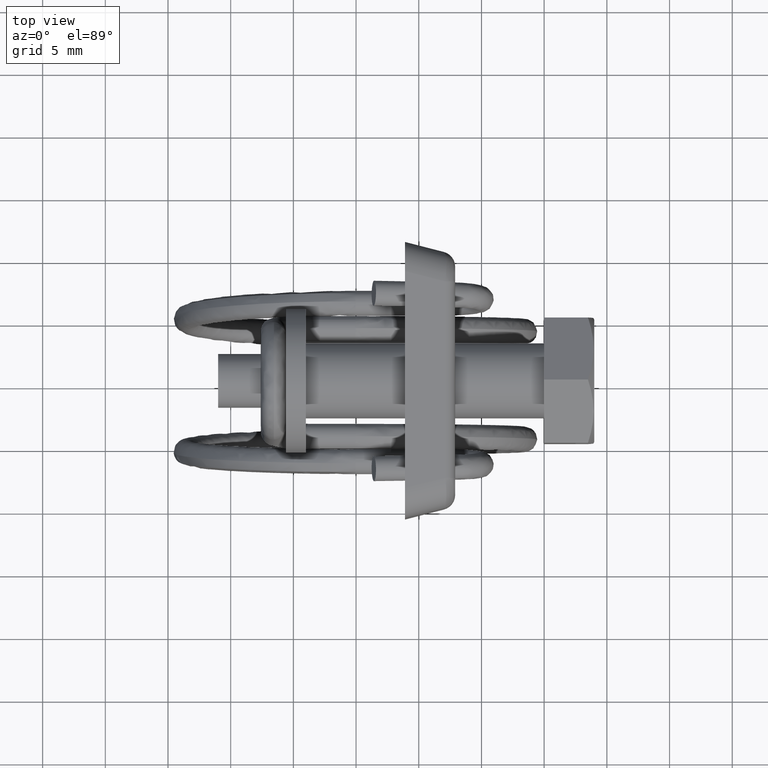
[diagram: clean part render]
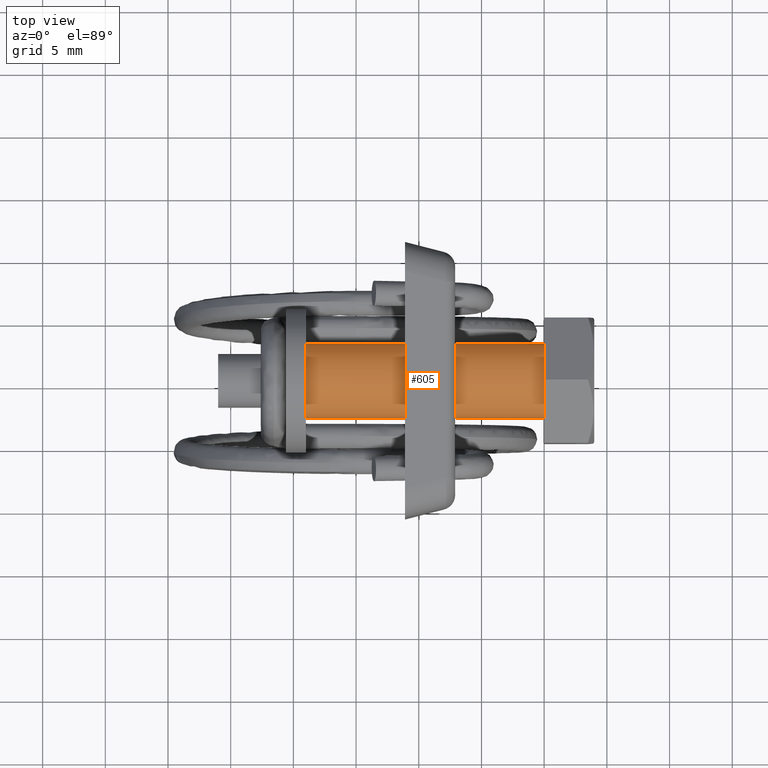
[diagram: same view with one face highlighted and labeled with its STEP entity id]
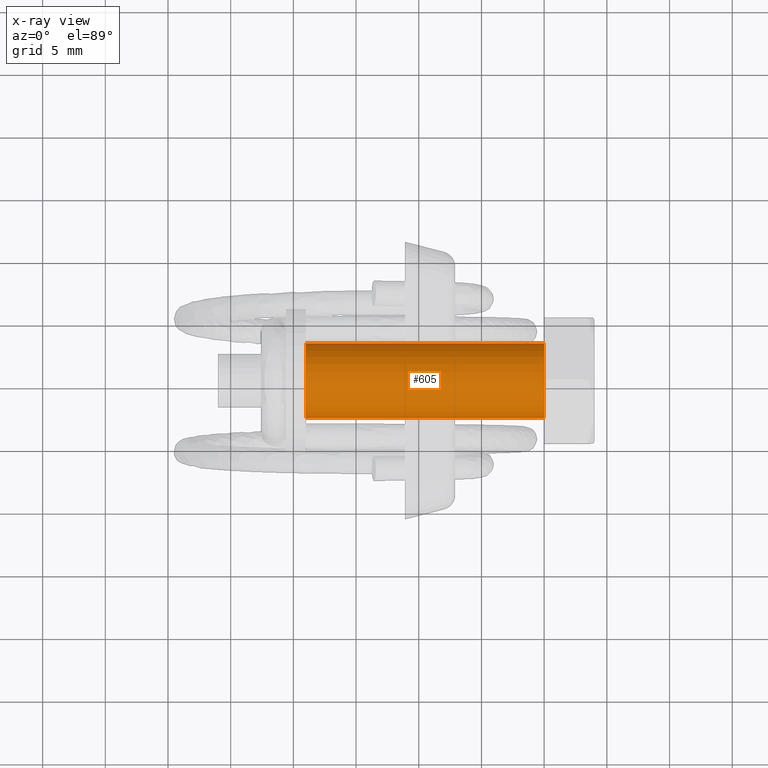
[diagram: x-ray of the same camera — body ghosted, the highlighted face saturated]
A machine part, top view. The second image highlights one B-rep face of the part: STEP entity #605.
The next image is the same camera in x-ray: the body ghosted, the highlighted face saturated — about 0% of this face is hidden behind the body in this view.
In plain terms, the highlighted face is a freeform B-spline surface patch.
Its self-contained STEP definition (entity closure, byte-faithful):
#442=CARTESIAN_POINT('',(7.666456E-016,2.979028579084106,0.354102704029243));
#443=VERTEX_POINT('',#442);
#461=CARTESIAN_POINT('',(7.216450E-016,-2.994404395261453,-0.183145618674264));
#462=VERTEX_POINT('',#461);
#476=CARTESIAN_POINT('',(-19.0,-2.994404395261453,-0.183145618674264));
#477=VERTEX_POINT('',#476);
#478=CARTESIAN_POINT('',(7.216450E-016,-2.994404395261453,-0.183145618674264));
#479=CARTESIAN_POINT('',(-19.0,-2.994404395261453,-0.183145618674264));
#480=QUASI_UNIFORM_CURVE('',1,(#478,#479),.UNSPECIFIED.,.F.,.U.);
#481=EDGE_CURVE('',#462,#477,#480,.T.);
#498=CARTESIAN_POINT('',(-19.0,2.979028579084106,0.354102704029243));
#499=VERTEX_POINT('',#498);
#515=CARTESIAN_POINT('',(7.666456E-016,2.979028579084106,0.354102704029243));
#516=CARTESIAN_POINT('',(-19.0,2.979028579084106,0.354102704029243));
#517=QUASI_UNIFORM_CURVE('',1,(#515,#516),.UNSPECIFIED.,.F.,.U.);
#518=EDGE_CURVE('',#443,#499,#517,.T.);
#523=CARTESIAN_POINT('',(0.475000000000000,-2.994404395265715,-0.183145618604578));
#524=CARTESIAN_POINT('',(0.475000000000001,-3.177550013870294,2.811258776661137));
#525=CARTESIAN_POINT('',(0.475000000000000,-0.183145618604578,2.994404395265715));
#526=CARTESIAN_POINT('',(0.475000000000000,2.644630472518604,3.167358590197703));
#527=CARTESIAN_POINT('',(0.475000000000001,2.979028579091114,0.354102703970289));
#528=CARTESIAN_POINT('',(-19.486875000000001,-2.994404395265715,-0.183145618604578));
#529=CARTESIAN_POINT('',(-19.486875000000008,-3.177550013870294,2.811258776661137));
#530=CARTESIAN_POINT('',(-19.486875000000001,-0.183145618604578,2.994404395265715));
#531=CARTESIAN_POINT('',(-19.486874999999998,2.644630472518604,3.167358590197703));
#532=CARTESIAN_POINT('',(-19.486875000000005,2.979028579091114,0.354102703970289));
#540=(BOUNDED_SURFACE()B_SPLINE_SURFACE(2,1,((#523,#528),(#524,#529),(#525,#530),(#526,#531),(#527,#532)),.UNSPECIFIED.,.F.,.F.,.U.)B_SPLINE_SURFACE_WITH_KNOTS((3,2,3),(2,2),(0.0,4.970562748477330,9.742302987015567),(0.0,19.961875000000010),.UNSPECIFIED.)GEOMETRIC_REPRESENTATION_ITEM()RATIONAL_B_SPLINE_SURFACE(((1.0,1.0),(0.707106781186548,0.707106781186548),(1.0,1.0),(0.718822509939086,0.718822509939086),(0.977505800795127,0.977505800795127)))REPRESENTATION_ITEM('')SURFACE());
#541=CARTESIAN_POINT('',(0.0,0.0,3.000000000000115));
#542=VERTEX_POINT('',#541);
#543=CARTESIAN_POINT('',(0.0,0.0,3.000000000000115));
#544=CARTESIAN_POINT('',(0.0,2.664523577748002,3.000000000000115));
#545=CARTESIAN_POINT('',(7.666456E-016,2.979028579084106,0.354102704029243));
#553=(BOUNDED_CURVE()B_SPLINE_CURVE(2,(#543,#544,#545),.UNSPECIFIED.,.F.,.U.)B_SPLINE_CURVE_WITH_KNOTS((3,3),(0.500000000000000,0.729562473508955),.UNSPECIFIED.)CURVE()GEOMETRIC_REPRESENTATION_ITEM()RATIONAL_B_SPLINE_CURVE((1.0,0.731050832860737,0.956026754174775))REPRESENTATION_ITEM(''));
#554=EDGE_CURVE('',#542,#443,#553,.T.);
#555=ORIENTED_EDGE('',*,*,#554,.T.);
#556=ORIENTED_EDGE('',*,*,#518,.T.);
#557=CARTESIAN_POINT('',(-19.0,0.0,3.000000000000115));
#558=VERTEX_POINT('',#557);
#559=CARTESIAN_POINT('',(-19.0,0.0,3.000000000000115));
#560=CARTESIAN_POINT('',(-19.000000000000004,2.664523577748002,3.000000000000115));
#561=CARTESIAN_POINT('',(-19.000000000000004,2.979028579084106,0.354102704029243));
#569=(BOUNDED_CURVE()B_SPLINE_CURVE(2,(#559,#560,#561),.UNSPECIFIED.,.F.,.U.)B_SPLINE_CURVE_WITH_KNOTS((3,3),(0.0,0.229562473508955),.UNSPECIFIED.)CURVE()GEOMETRIC_REPRESENTATION_ITEM()RATIONAL_B_SPLINE_CURVE((1.0,0.731050832860737,0.956026754174775))REPRESENTATION_ITEM(''));
#570=EDGE_CURVE('',#558,#499,#569,.T.);
#571=ORIENTED_EDGE('',*,*,#570,.F.);
#572=CARTESIAN_POINT('',(-19.0,-2.994404395261453,-0.183145618674265));
#573=CARTESIAN_POINT('',(-18.999999999999996,-3.000000000000115,-0.091658289965652));
#574=CARTESIAN_POINT('',(-19.0,-3.000000000000115,0.0));
#575=CARTESIAN_POINT('',(-18.999999999999996,-3.000000000000114,3.000000000000114));
#576=CARTESIAN_POINT('',(-19.0,0.0,3.000000000000115));
#584=(BOUNDED_CURVE()B_SPLINE_CURVE(2,(#572,#573,#574,#575,#576),.UNSPECIFIED.,.F.,.U.)B_SPLINE_CURVE_WITH_KNOTS((3,2,3),(0.739332962233937,0.750000000000000,1.0),.UNSPECIFIED.)CURVE()GEOMETRIC_REPRESENTATION_ITEM()RATIONAL_B_SPLINE_CURVE((0.976072041655990,0.987502787893973,1.0,0.707106781186547,1.0))REPRESENTATION_ITEM(''));
#585=EDGE_CURVE('',#477,#558,#584,.T.);
#586=ORIENTED_EDGE('',*,*,#585,.F.);
#587=ORIENTED_EDGE('',*,*,#481,.F.);
#588=CARTESIAN_POINT('',(7.216450E-016,-2.994404395261453,-0.183145618674264));
#589=CARTESIAN_POINT('',(0.0,-3.000000000000115,-0.091658289965652));
#590=CARTESIAN_POINT('',(0.0,-3.000000000000115,0.0));
#591=CARTESIAN_POINT('',(0.0,-3.000000000000114,3.000000000000114));
#592=CARTESIAN_POINT('',(0.0,0.0,3.000000000000115));
#600=(BOUNDED_CURVE()B_SPLINE_CURVE(2,(#588,#589,#590,#591,#592),.UNSPECIFIED.,.F.,.U.)B_SPLINE_CURVE_WITH_KNOTS((3,2,3),(0.239332962233937,0.250000000000000,0.500000000000000),.UNSPECIFIED.)CURVE()GEOMETRIC_REPRESENTATION_ITEM()RATIONAL_B_SPLINE_CURVE((0.976072041655990,0.987502787893973,1.0,0.707106781186547,1.0))REPRESENTATION_ITEM(''));
#601=EDGE_CURVE('',#462,#542,#600,.T.);
#602=ORIENTED_EDGE('',*,*,#601,.T.);
#603=EDGE_LOOP('',(#555,#556,#571,#586,#587,#602));
#604=FACE_OUTER_BOUND('',#603,.T.);
#605=ADVANCED_FACE('',(#604),#540,.T.);